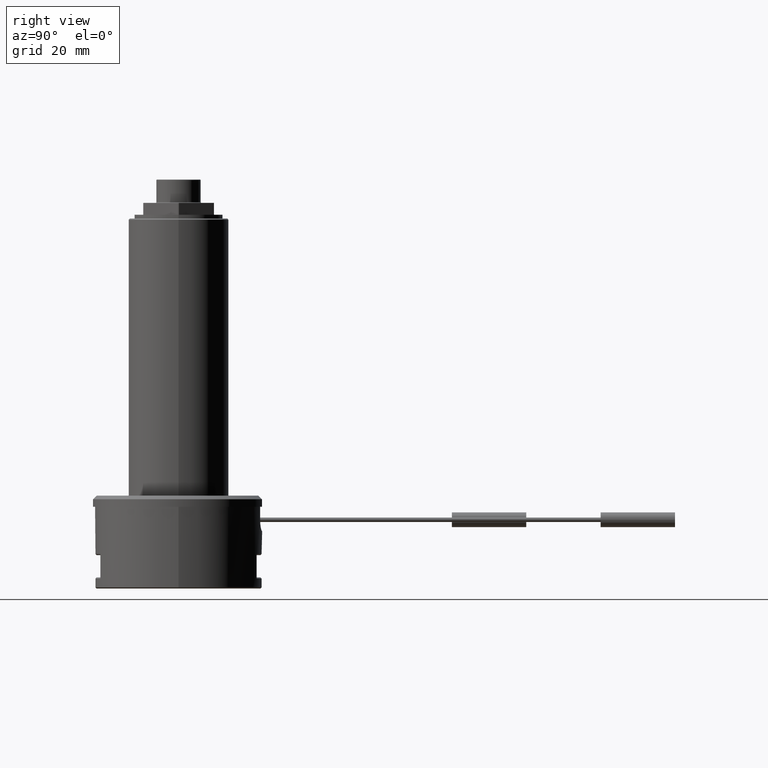
[diagram: clean part render]
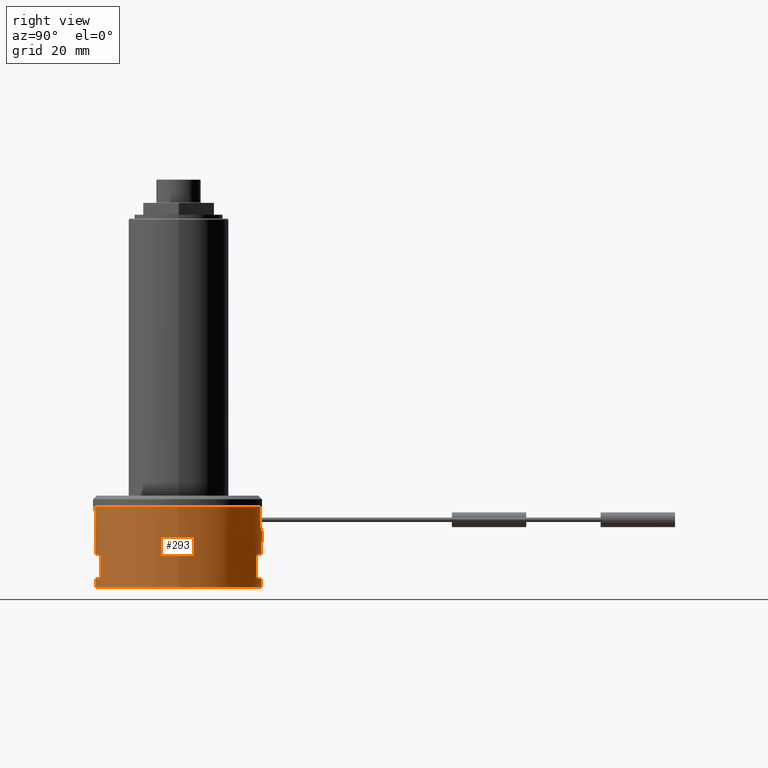
[diagram: same view with one face highlighted and labeled with its STEP entity id]
A machine part, right view. The second image highlights one B-rep face of the part: STEP entity #293.
In plain terms, the highlighted cylindrical surface (bore or boss wall) has radius 22.5 mm, axis along (0, 0, 1).
Its self-contained STEP definition (entity closure, byte-faithful):
#47=LINE('',#1720,#91);
#48=LINE('',#1725,#92);
#49=LINE('',#1728,#93);
#50=LINE('',#1733,#94);
#51=LINE('',#1736,#95);
#52=LINE('',#1775,#96);
#91=VECTOR('',#1343,1.);
#92=VECTOR('',#1346,1.);
#93=VECTOR('',#1349,1.);
#94=VECTOR('',#1352,1.);
#95=VECTOR('',#1355,1.);
#96=VECTOR('',#1358,1.);
#132=B_SPLINE_CURVE_WITH_KNOTS('',3,(#1739,#1740,#1741,#1742,#1743,#1744,
#1745,#1746,#1747,#1748,#1749,#1750,#1751,#1752,#1753,#1754),
 .UNSPECIFIED.,.F.,.F.,(4,3,3,3,3,4),(0.,0.210382546729296,0.420567258541741,
0.633779608703615,0.850966171544662,1.),.UNSPECIFIED.);
#133=B_SPLINE_CURVE_WITH_KNOTS('',3,(#1758,#1759,#1760,#1761,#1762,#1763,
#1764,#1765,#1766,#1767,#1768,#1769,#1770,#1771,#1772,#1773),
 .UNSPECIFIED.,.F.,.F.,(4,3,3,3,3,4),(0.,0.215733159336232,0.43133218634288,
0.64878656298699,0.86532988433574,1.),.UNSPECIFIED.);
#293=ADVANCED_FACE('',(#384,#385,#386,#387),#360,.T.);
#360=CYLINDRICAL_SURFACE('',#1148,22.5);
#384=FACE_BOUND('',#458,.T.);
#385=FACE_BOUND('',#459,.T.);
#386=FACE_BOUND('',#460,.T.);
#387=FACE_BOUND('',#461,.T.);
#458=EDGE_LOOP('',(#599));
#459=EDGE_LOOP('',(#600,#601,#602,#603));
#460=EDGE_LOOP('',(#604,#605,#606,#607));
#461=EDGE_LOOP('',(#608,#609,#610,#611,#612,#613));
#599=ORIENTED_EDGE('',*,*,#947,.T.);
#600=ORIENTED_EDGE('',*,*,#948,.F.);
#601=ORIENTED_EDGE('',*,*,#949,.T.);
#602=ORIENTED_EDGE('',*,*,#950,.F.);
#603=ORIENTED_EDGE('',*,*,#951,.T.);
#604=ORIENTED_EDGE('',*,*,#952,.F.);
#605=ORIENTED_EDGE('',*,*,#953,.T.);
#606=ORIENTED_EDGE('',*,*,#954,.F.);
#607=ORIENTED_EDGE('',*,*,#955,.T.);
#608=ORIENTED_EDGE('',*,*,#956,.F.);
#609=ORIENTED_EDGE('',*,*,#957,.T.);
#610=ORIENTED_EDGE('',*,*,#958,.T.);
#611=ORIENTED_EDGE('',*,*,#959,.T.);
#612=ORIENTED_EDGE('',*,*,#960,.F.);
#613=ORIENTED_EDGE('',*,*,#961,.F.);
#843=VERTEX_POINT('',#1719);
#844=VERTEX_POINT('',#1721);
#845=VERTEX_POINT('',#1722);
#846=VERTEX_POINT('',#1724);
#847=VERTEX_POINT('',#1726);
#848=VERTEX_POINT('',#1729);
#849=VERTEX_POINT('',#1730);
#850=VERTEX_POINT('',#1732);
#851=VERTEX_POINT('',#1734);
#852=VERTEX_POINT('',#1737);
#853=VERTEX_POINT('',#1738);
#854=VERTEX_POINT('',#1755);
#855=VERTEX_POINT('',#1757);
#856=VERTEX_POINT('',#1774);
#857=VERTEX_POINT('',#1776);
#947=EDGE_CURVE('',#843,#843,#1057,.T.);
#948=EDGE_CURVE('',#844,#845,#47,.T.);
#949=EDGE_CURVE('',#844,#846,#1058,.T.);
#950=EDGE_CURVE('',#847,#846,#48,.T.);
#951=EDGE_CURVE('',#847,#845,#1059,.T.);
#952=EDGE_CURVE('',#848,#849,#49,.T.);
#953=EDGE_CURVE('',#848,#850,#1060,.T.);
#954=EDGE_CURVE('',#851,#850,#50,.T.);
#955=EDGE_CURVE('',#851,#849,#1061,.T.);
#956=EDGE_CURVE('',#852,#853,#51,.T.);
#957=EDGE_CURVE('',#852,#854,#132,.T.);
#958=EDGE_CURVE('',#854,#855,#1062,.T.);
#959=EDGE_CURVE('',#855,#856,#133,.T.);
#960=EDGE_CURVE('',#857,#856,#52,.T.);
#961=EDGE_CURVE('',#853,#857,#1063,.T.);
#1057=CIRCLE('',#1141,22.5);
#1058=CIRCLE('',#1142,22.5);
#1059=CIRCLE('',#1143,22.5);
#1060=CIRCLE('',#1144,22.5);
#1061=CIRCLE('',#1145,22.5);
#1062=CIRCLE('',#1146,22.5);
#1063=CIRCLE('',#1147,22.5000000000001);
#1141=AXIS2_PLACEMENT_3D('',#1718,#1341,#1342);
#1142=AXIS2_PLACEMENT_3D('',#1723,#1344,#1345);
#1143=AXIS2_PLACEMENT_3D('',#1727,#1347,#1348);
#1144=AXIS2_PLACEMENT_3D('',#1731,#1350,#1351);
#1145=AXIS2_PLACEMENT_3D('',#1735,#1353,#1354);
#1146=AXIS2_PLACEMENT_3D('',#1756,#1356,#1357);
#1147=AXIS2_PLACEMENT_3D('',#1777,#1359,#1360);
#1148=AXIS2_PLACEMENT_3D('',#1778,#1361,#1362);
#1341=DIRECTION('',(0.,0.,1.));
#1342=DIRECTION('',(1.,0.,0.));
#1343=DIRECTION('',(0.,0.,1.));
#1344=DIRECTION('',(0.,0.,-1.));
#1345=DIRECTION('',(1.,0.,0.));
#1346=DIRECTION('',(0.,0.,-1.));
#1347=DIRECTION('',(0.,0.,1.));
#1348=DIRECTION('',(-1.,0.,0.));
#1349=DIRECTION('',(0.,0.,-1.));
#1350=DIRECTION('',(0.,0.,1.));
#1351=DIRECTION('',(-1.,0.,0.));
#1352=DIRECTION('',(0.,0.,1.));
#1353=DIRECTION('',(0.,0.,-1.));
#1354=DIRECTION('',(1.,0.,0.));
#1355=DIRECTION('',(0.,0.,1.));
#1356=DIRECTION('',(0.,0.,-1.));
#1357=DIRECTION('',(1.,0.,0.));
#1358=DIRECTION('',(0.,0.,-1.));
#1359=DIRECTION('',(0.,0.,1.));
#1360=DIRECTION('',(1.,0.,0.));
#1361=DIRECTION('',(0.,0.,1.));
#1362=DIRECTION('',(1.,0.,0.));
#1718=CARTESIAN_POINT('',(0.,0.,0.299999999999989));
#1719=CARTESIAN_POINT('',(22.5,0.,0.299999999999989));
#1720=CARTESIAN_POINT('',(8.07774721070187,-21.,0.));
#1721=CARTESIAN_POINT('',(8.07774721070187,-21.,2.7));
#1722=CARTESIAN_POINT('',(8.07774721070187,-21.,9.3));
#1723=CARTESIAN_POINT('',(0.,0.,2.7));
#1724=CARTESIAN_POINT('',(-8.07774721070187,-21.,2.7));
#1725=CARTESIAN_POINT('',(-8.07774721070187,-21.,0.));
#1726=CARTESIAN_POINT('',(-8.07774721070187,-21.,9.3));
#1727=CARTESIAN_POINT('',(0.,0.,9.3));
#1728=CARTESIAN_POINT('',(8.07774721070187,21.,0.));
#1729=CARTESIAN_POINT('',(8.07774721070187,21.,9.3));
#1730=CARTESIAN_POINT('',(8.07774721070187,21.,2.7));
#1731=CARTESIAN_POINT('',(0.,0.,9.3));
#1732=CARTESIAN_POINT('',(-8.07774721070187,21.,9.3));
#1733=CARTESIAN_POINT('',(-8.07774721070187,21.,0.));
#1734=CARTESIAN_POINT('',(-8.07774721070187,21.,2.7));
#1735=CARTESIAN_POINT('',(0.,0.,2.7));
#1736=CARTESIAN_POINT('',(-4.99999999999498,21.9374109684815,-6.39108649043445E-15));
#1737=CARTESIAN_POINT('',(-4.99999999999498,21.9374109684815,18.5));
#1738=CARTESIAN_POINT('',(-4.99999999999501,21.9374109684815,22.));
#1739=CARTESIAN_POINT('',(-4.99999999999498,21.9374109684815,18.5));
#1740=CARTESIAN_POINT('',(-4.99999999999498,21.9374109684815,18.1694696898238));
#1741=CARTESIAN_POINT('',(-4.94374924932318,21.9504313632977,17.8343936005466));
#1742=CARTESIAN_POINT('',(-4.83634854638536,21.9740695534049,17.5226940482176));
#1743=CARTESIAN_POINT('',(-4.72900490105357,21.9976951855075,17.2111600891276));
#1744=CARTESIAN_POINT('',(-4.56779482492955,22.0324188778943,16.9144484594739));
#1745=CARTESIAN_POINT('',(-4.36619897200384,22.0722972646001,16.6557921958564));
#1746=CARTESIAN_POINT('',(-4.16171160287282,22.1127476323251,16.3934259909529));
#1747=CARTESIAN_POINT('',(-3.91018855989953,22.1594249307954,16.1630380771776));
#1748=CARTESIAN_POINT('',(-3.63159950990299,22.2049878405658,15.9824847489503));
#1749=CARTESIAN_POINT('',(-3.34796978536894,22.2513751466975,15.7986645638086));
#1750=CARTESIAN_POINT('',(-3.02838550122421,22.2977361697783,15.6614747182201));
#1751=CARTESIAN_POINT('',(-2.69888270574544,22.3375475856377,15.5825416946248));
#1752=CARTESIAN_POINT('',(-2.47108690037844,22.3650704888208,15.5279727746439));
#1753=CARTESIAN_POINT('',(-2.23491847621012,22.3899702012054,15.5));
#1754=CARTESIAN_POINT('',(-1.99999999999501,22.4109348310155,15.5));
#1755=CARTESIAN_POINT('',(-1.99999999999501,22.4109348310155,15.5));
#1756=CARTESIAN_POINT('',(0.,0.,15.5));
#1757=CARTESIAN_POINT('',(1.99999999999501,22.4109348310155,15.5));
#1758=CARTESIAN_POINT('',(1.99999999999501,22.4109348310155,15.5));
#1759=CARTESIAN_POINT('',(2.33759360961378,22.3808072515848,15.5));
#1760=CARTESIAN_POINT('',(2.6790869377908,22.3422224047446,15.558588435076));
#1761=CARTESIAN_POINT('',(2.99625053968586,22.2996072320441,15.6702500353979));
#1762=CARTESIAN_POINT('',(3.31329350196677,22.2570082688896,15.7818691629635));
#1763=CARTESIAN_POINT('',(3.61481750270108,22.2093174944092,15.9494989428992));
#1764=CARTESIAN_POINT('',(3.87671560004034,22.1635077583943,16.1595003617718));
#1765=CARTESIAN_POINT('',(4.1407792821987,22.1173192305139,16.3712382418456));
#1766=CARTESIAN_POINT('',(4.37191173795965,22.0719213239085,16.6320151170881));
#1767=CARTESIAN_POINT('',(4.5506854793055,22.0350008320499,16.9207585410601));
#1768=CARTESIAN_POINT('',(4.72865548623823,21.9982463280463,17.2082038268119));
#1769=CARTESIAN_POINT('',(4.85965617003421,21.9690508855236,17.5316232510996));
#1770=CARTESIAN_POINT('',(4.93171747099891,21.9528622914245,17.8635782293082));
#1771=CARTESIAN_POINT('',(4.97694124600742,21.9427027560366,18.0719044327834));
#1772=CARTESIAN_POINT('',(4.99999999999504,21.9374109684815,18.2865797267369));
#1773=CARTESIAN_POINT('',(4.99999999999504,21.9374109684815,18.5));
#1774=CARTESIAN_POINT('',(4.99999999999504,21.9374109684815,18.5));
#1775=CARTESIAN_POINT('',(4.99999999999504,21.9374109684815,8.67361737987544E-15));
#1776=CARTESIAN_POINT('',(4.99999999999501,21.9374109684815,22.));
#1777=CARTESIAN_POINT('',(0.,0.,22.));
#1778=CARTESIAN_POINT('',(0.,0.,0.));